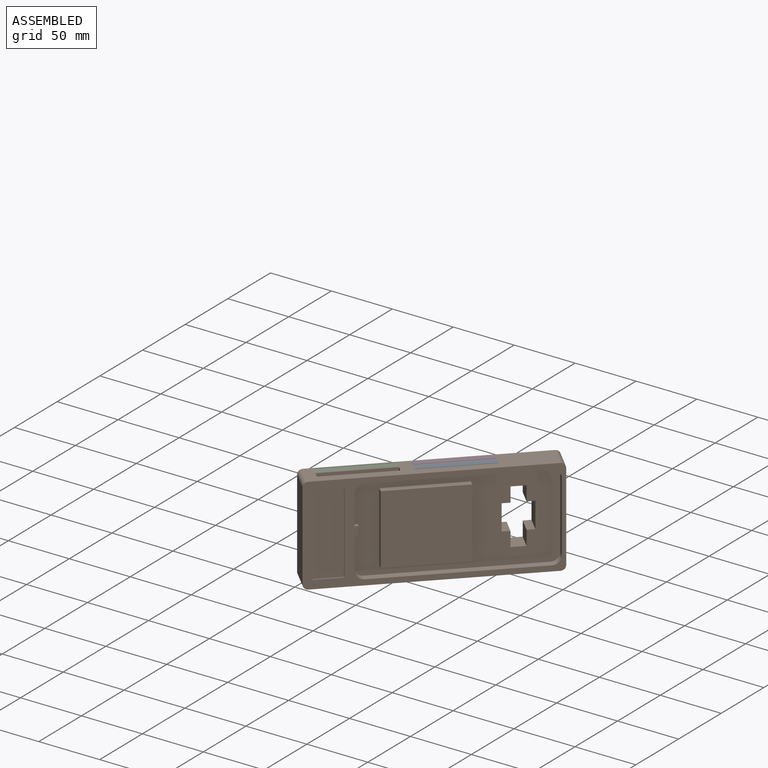
[diagram: assembled view]
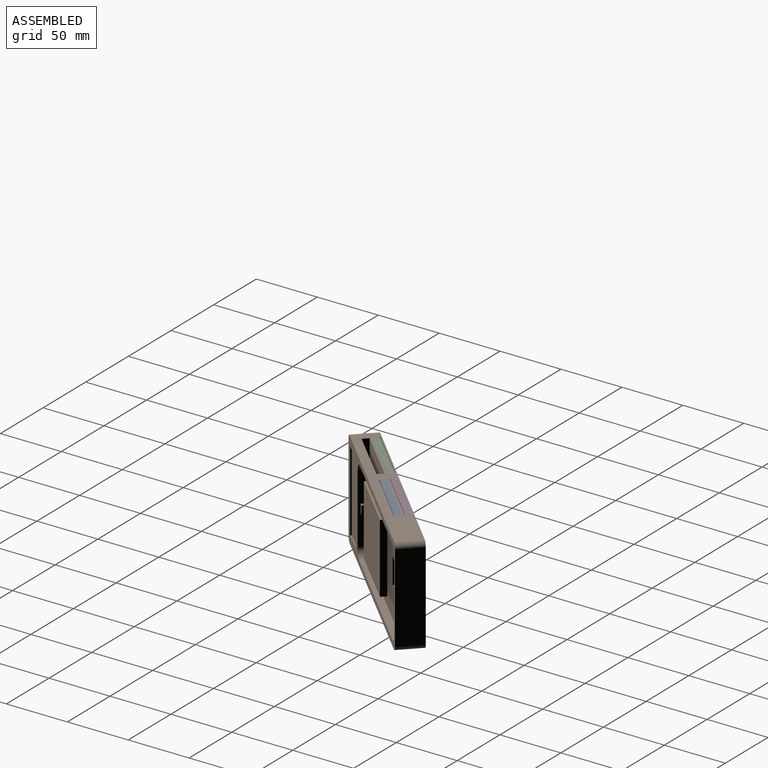
[diagram: assembled view, second angle]
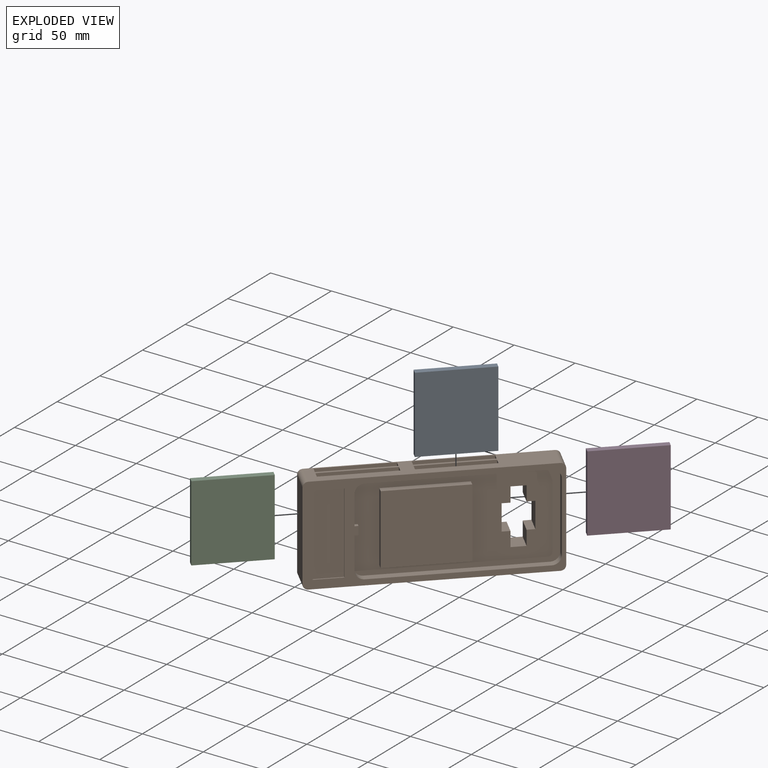
[diagram: exploded view]
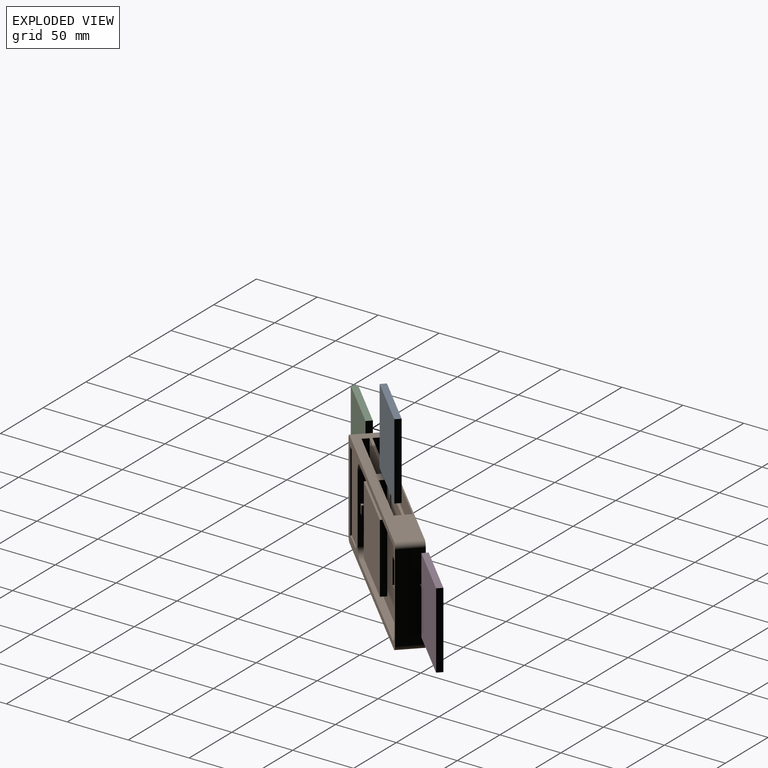
[diagram: exploded view, second angle]
ASSEMBLY  parts=4 mates=11
PART A: 6 faces, bbox 62.5x5x57 mm
  f0: plane 62.5x5mm, normal (0,0,1), area 312.5mm2, adj f1,f3,f4,f5
  f1: plane 57x5mm, normal (-1,0,0), area 285mm2, adj f0,f2,f4,f5
  f2: plane 62.5x5mm, normal (0,0,-1), area 312.5mm2, adj f1,f3,f4,f5
  f3: plane 57x5mm, normal (1,0,0), area 285mm2, adj f0,f2,f4,f5
  f4: plane 62.5x57mm, normal (0,-1,0), area 3562.5mm2, adj f0,f1,f2,f3
  f5: plane 62.5x57mm, normal (0,1,0), area 3562.5mm2, adj f0,f1,f2,f3
PART B: 71 faces, bbox 80x21x180 mm
  f0: plane 172x21mm, normal (1,0,0), area 3591mm2, adj f5,f6,f9,f10,f66,f67,f68,f69
  f1: plane 141.5x71mm, normal (0,-1,0), area 5694.9mm2, adj f31,f32,f33,f34,f35,f36,f37,f38
  f2: plane 72x21mm, normal (0,0,1), area 1512mm2, adj f5,f6,f7,f10
  f3: plane 172x21mm, normal (-1,0,0), area 2358mm2, adj f5,f6,f7,f8,f11,f12,f13,f14
  f4: plane 72x21mm, normal (0,0,-1), area 1512mm2, adj f5,f6,f8,f9
  f5: plane 180x80mm, normal (0,-1,0), area 2962.8mm2, adj f0,f2,f3,f4,f7,f8,f9,f10
  f6: plane 180x80mm, normal (0,1,0), area 13639.3mm2, adj f0,f2,f3,f4,f7,f8,f9,f10
  f7: cylinder r=4mm len=21mm, axis (0,-1,0), area 131.9mm2, adj f2,f3,f5,f6
  f8: cylinder r=4mm len=21mm, axis (0,1,0), area 131.9mm2, adj f3,f4,f5,f6
  f9: cylinder r=4mm len=21mm, axis (0,-1,0), area 131.9mm2, adj f0,f4,f5,f6
  f10: cylinder r=4mm len=21mm, axis (0,1,0), area 131.9mm2, adj f0,f2,f5,f6
  f11: plane 63x5.5mm, normal (0,0,1), area 346.5mm2, adj f3,f12,f14,f15
  f12: plane 63x57mm, normal (0,1,0), area 3591mm2, adj f3,f11,f13,f15
  f13: plane 63x5.5mm, normal (0,0,-1), area 346.5mm2, adj f3,f12,f14,f15
  f14: plane 63x57mm, normal (0,-1,0), area 3591mm2, adj f3,f11,f13,f15
  f15: plane 57x5.5mm, normal (-1,0,0), area 313.5mm2, adj f11,f12,f13,f14
  f16: plane 63x5.5mm, normal (0,0,1), area 346.5mm2, adj f3,f17,f19,f20
  f17: plane 63x57mm, normal (0,1,0), area 3591mm2, adj f3,f16,f18,f20
  f18: plane 63x5.5mm, normal (0,0,-1), area 346.5mm2, adj f3,f17,f19,f20
  f19: plane 63x57mm, normal (0,-1,0), area 3591mm2, adj f3,f16,f18,f20
  f20: plane 57x5.5mm, normal (-1,0,0), area 313.5mm2, adj f16,f17,f18,f19
  f21: plane 63x5.5mm, normal (0,0,1), area 346.5mm2, adj f3,f22,f24,f25
  f22: plane 63x57mm, normal (0,1,0), area 3591mm2, adj f3,f21,f23,f25
  f23: plane 63x5.5mm, normal (0,0,-1), area 346.5mm2, adj f3,f22,f24,f25
  f24: plane 63x57mm, normal (0,-1,0), area 3591mm2, adj f3,f21,f23,f25
  f25: plane 57x5.5mm, normal (-1,0,0), area 313.5mm2, adj f21,f22,f23,f24
  f26: plane 63x5.5mm, normal (0,0,1), area 346.5mm2, adj f3,f27,f29,f30
  f27: plane 63x57mm, normal (0,1,0), area 3591mm2, adj f3,f26,f28,f30
  f28: plane 63x5.5mm, normal (0,0,-1), area 346.5mm2, adj f3,f27,f29,f30
  f29: plane 63x57mm, normal (0,-1,0), area 3591mm2, adj f3,f26,f28,f30
  f30: plane 57x5.5mm, normal (-1,0,0), area 313.5mm2, adj f26,f27,f28,f29
  f31: plane 127.5x6mm, normal (1,0,0), area 765mm2, adj f1,f5,f32,f38
  f32: cylinder r=7mm len=7mm, axis (0,-1,0), area 66mm2, adj f1,f5,f31,f33
  f33: plane 57x6mm, normal (0,0,1), area 321mm2, adj f1,f5,f32,f34,f56,f57,f58,f59
  f34: cylinder r=7mm len=7mm, axis (0,-1,0), area 66mm2, adj f1,f5,f33,f35
  f35: plane 127.5x6mm, normal (-1,0,0), area 765mm2, adj f1,f5,f34,f36
  f36: cylinder r=7mm len=7mm, axis (0,-1,0), area 66mm2, adj f1,f5,f35,f37
  f37: plane 57x6mm, normal (0,0,-1), area 342mm2, adj f1,f5,f36,f38
  f38: cylinder r=7mm len=7mm, axis (0,-1,0), area 66mm2, adj f1,f5,f31,f37
  f39: plane 57x5mm, normal (0,0,1), area 285mm2, adj f1,f40,f42,f43
  f40: plane 62.5x5mm, normal (-1,0,0), area 312.5mm2, adj f1,f39,f41,f43
  f41: plane 57x5mm, normal (0,0,-1), area 285mm2, adj f1,f40,f42,f43
  f42: plane 62.5x5mm, normal (1,0,0), area 312.5mm2, adj f1,f39,f41,f43
  f43: plane 62.5x57mm, normal (0,-1,0), area 3562.5mm2, adj f39,f40,f41,f42
  f44: plane 15x6mm, normal (-1,0,0), area 90mm2, adj f1,f6,f45,f55
  f45: plane 15x12mm, normal (0,0,1), area 180mm2, adj f1,f6,f44,f46
  f46: plane 15x11mm, normal (-1,0,0), area 165mm2, adj f1,f6,f45,f47
  f47: plane 15x12mm, normal (0,0,-1), area 180mm2, adj f1,f6,f46,f48
  f48: plane 15x6mm, normal (-1,0,0), area 90mm2, adj f1,f6,f47,f49
  f49: plane 21x15mm, normal (0,0,-1), area 315mm2, adj f1,f6,f48,f50
  f50: plane 15x6mm, normal (1,0,0), area 90mm2, adj f1,f6,f49,f51
  f51: plane 15x12mm, normal (0,0,-1), area 180mm2, adj f1,f6,f50,f52
  f52: plane 15x11mm, normal (1,0,0), area 165mm2, adj f1,f6,f51,f53
  f53: plane 15x12mm, normal (0,0,1), area 180mm2, adj f1,f6,f52,f54
  f54: plane 15x6mm, normal (1,0,0), area 90mm2, adj f1,f6,f53,f55
  f55: plane 21x15mm, normal (0,0,1), area 315mm2, adj f1,f6,f44,f54
  f56: plane 7x3mm, normal (0,-1,0), area 21mm2, adj f33,f57,f59,f60
  f57: plane 3x3mm, normal (1,0,0), area 9mm2, adj f33,f56,f58,f60
  f58: plane 7x3mm, normal (0,1,0), area 21mm2, adj f33,f57,f59,f60
  f59: plane 3x3mm, normal (-1,0,0), area 9mm2, adj f33,f56,f58,f60
  f60: plane 7x3mm, normal (0,0,1), area 21mm2, adj f56,f57,f58,f59
  f61: plane 66x1mm, normal (0,0,-1), area 66mm2, adj f5,f62,f64,f65
  f62: plane 21.5x1mm, normal (1,0,0), area 21.5mm2, adj f5,f61,f63,f65
  f63: plane 66x1mm, normal (0,0,1), area 66mm2, adj f5,f62,f64,f65
  f64: plane 21.5x1mm, normal (-1,0,0), area 21.5mm2, adj f5,f61,f63,f65
  f65: plane 66x21.5mm, normal (0,-1,0), area 1419mm2, adj f61,f62,f63,f64
  f66: plane 3x3mm, normal (0,0,1), area 9mm2, adj f0,f67,f69,f70
  f67: plane 7x3mm, normal (0,-1,0), area 21mm2, adj f0,f66,f68,f70
  f68: plane 3x3mm, normal (0,0,-1), area 9mm2, adj f0,f67,f69,f70
  f69: plane 7x3mm, normal (0,1,0), area 21mm2, adj f0,f66,f68,f70
  f70: plane 7x3mm, normal (1,0,0), area 21mm2, adj f66,f67,f68,f69
PART C: same geometry as A
PART D: same geometry as A
PLACE A rot(axis=(0.36,-0.86,0.36),98.4deg) t=(-2.35,147.75,-120.82)mm
PLACE B rot(axis=(-0.36,0.86,0.36),98.4deg) t=(-40.18,121.94,-160.82)mm fixed
PLACE C rot(axis=(-0.36,0.86,0.36),98.4deg) t=(-94.98,65.01,-183.32)mm
PLACE D rot(axis=(-0.36,0.86,0.36),98.4deg) t=(-47.96,112.74,-183.32)mm
MATE planar B.f23 <-> D.f0  axis (-0.71,-0.71,0) through (-5.71,151.1,-120.82)mm
MATE planar B.f3 <-> A.f3  axis (0,0,1) through (-25.23,119.78,-120.82)mm
MATE planar C.f2 <-> B.f16  axis (-0.71,-0.71,0) through (-94.98,65.01,-152.07)mm
MATE parallel D.f5 <-> B.f24  axis (-0.71,0.71,0) through (-27.8,132.9,-152.07)mm
MATE planar A.f5 <-> B.f14  axis (-0.71,0.71,0) through (-22.5,127.59,-152.07)mm
MATE parallel D.f1 <-> B.f3  axis (0,0,1) through (-26.04,131.13,-120.82)mm
MATE planar B.f24 <-> D.f5  axis (0.71,-0.71,0) through (-27.8,132.9,-152.32)mm
MATE planar D.f1 <-> B.f3  axis (0,0,1) through (-26.04,131.13,-120.82)mm
MATE planar C.f4 <-> B.f17  axis (0.71,-0.71,0) through (-71.29,81.63,-152.07)mm
MATE planar A.f0 <-> B.f11  axis (-0.71,-0.71,0) through (-40.89,105.67,-152.07)mm
MATE planar C.f1 <-> B.f3  axis (0,0,1) through (-94.98,65.01,-120.82)mm
